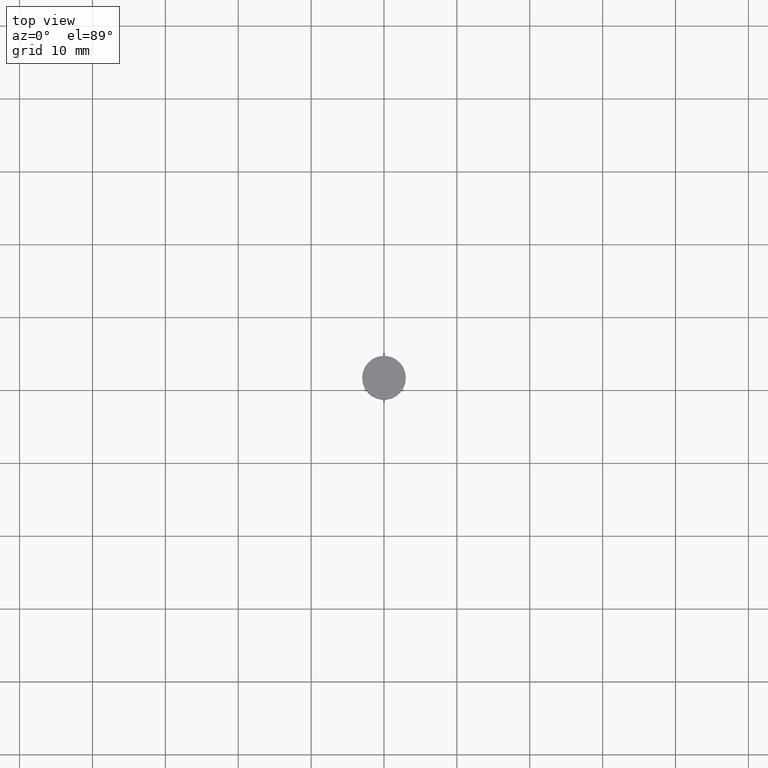
[diagram: clean part render]
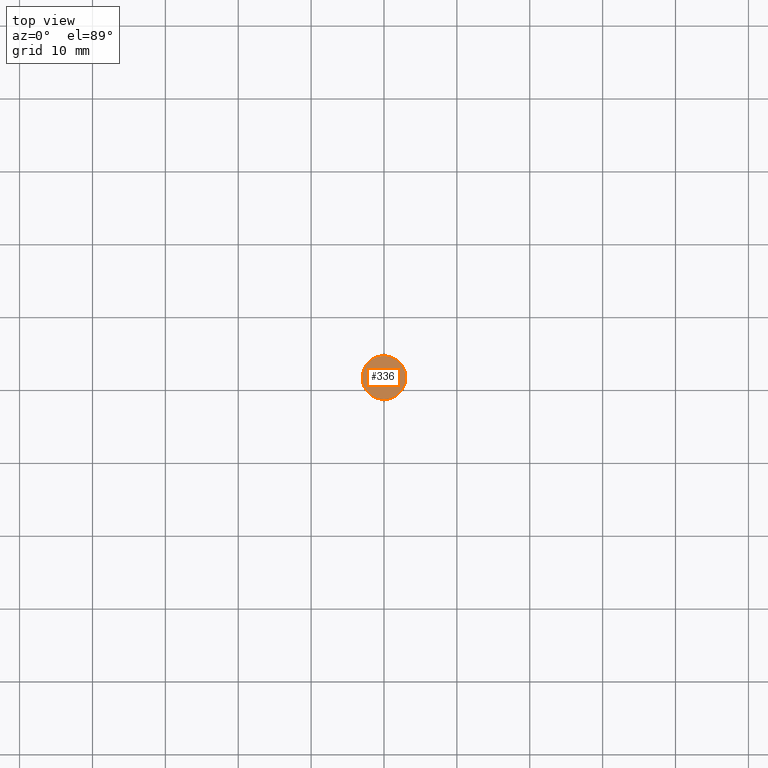
[diagram: same view with one face highlighted and labeled with its STEP entity id]
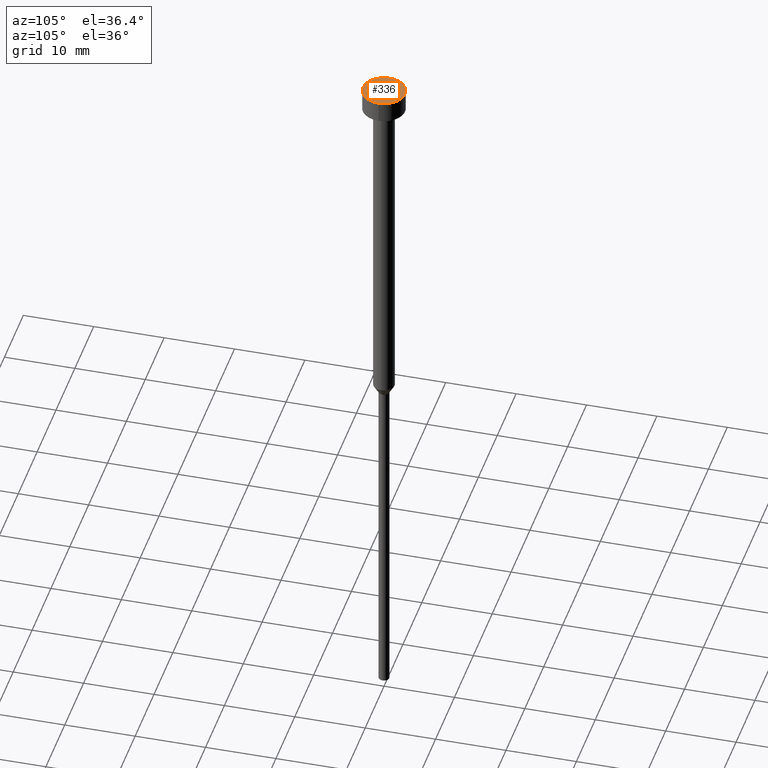
[diagram: same view with one face highlighted and labeled with its STEP entity id]
A machine part, top view. The second image highlights one B-rep face of the part: STEP entity #336.
A second angle (auxiliary view) of the same face is appended — the face is thin or edge-on in the first view.
In plain terms, the highlighted planar face has unit normal (0, -0, 1).
Its self-contained STEP definition (entity closure, byte-faithful):
#13 = CARTESIAN_POINT ( 'NONE',  ( 0.000000000000000000, 0.000000000000000000, -3.673940397442059868E-16 ) ) ;
#37 = DIRECTION ( 'NONE',  ( 1.000000000000000000, 0.000000000000000000, 0.000000000000000000 ) ) ;
#88 = ORIENTED_EDGE ( 'NONE', *, *, #157, .T. ) ;
#93 = PLANE ( 'NONE',  #290 ) ;
#107 = DIRECTION ( 'NONE',  ( -0.000000000000000000, -0.000000000000000000, 1.000000000000000000 ) ) ;
#119 = DIRECTION ( 'NONE',  ( 0.000000000000000000, -0.000000000000000000, 1.000000000000000000 ) ) ;
#122 = CARTESIAN_POINT ( 'NONE',  ( 3.000000000000000000, 0.000000000000000000, -3.673940397442059868E-16 ) ) ;
#157 = EDGE_CURVE ( 'NONE', #274, #304, #322, .T. ) ;
#158 = CIRCLE ( 'NONE', #281, 3.000000000000000000 ) ;
#177 = DIRECTION ( 'NONE',  ( 1.000000000000000000, 0.000000000000000000, 0.000000000000000000 ) ) ;
#200 = FACE_OUTER_BOUND ( 'NONE', #241, .T. ) ;
#223 = ORIENTED_EDGE ( 'NONE', *, *, #285, .T. ) ;
#224 = CARTESIAN_POINT ( 'NONE',  ( -3.000000000000000000, 3.673940397442059868E-16, -3.673940397442059868E-16 ) ) ;
#241 = EDGE_LOOP ( 'NONE', ( #88, #223 ) ) ;
#261 = AXIS2_PLACEMENT_3D ( 'NONE', #266, #107, #318 ) ;
#266 = CARTESIAN_POINT ( 'NONE',  ( 0.000000000000000000, 0.000000000000000000, -3.673940397442059868E-16 ) ) ;
#274 = VERTEX_POINT ( 'NONE', #122 ) ;
#281 = AXIS2_PLACEMENT_3D ( 'NONE', #13, #309, #37 ) ;
#285 = EDGE_CURVE ( 'NONE', #304, #274, #158, .T. ) ;
#290 = AXIS2_PLACEMENT_3D ( 'NONE', #306, #119, #177 ) ;
#304 = VERTEX_POINT ( 'NONE', #224 ) ;
#306 = CARTESIAN_POINT ( 'NONE',  ( 0.000000000000000000, 0.000000000000000000, -1.836970198721029934E-16 ) ) ;
#309 = DIRECTION ( 'NONE',  ( -0.000000000000000000, -0.000000000000000000, 1.000000000000000000 ) ) ;
#318 = DIRECTION ( 'NONE',  ( 1.000000000000000000, 0.000000000000000000, 0.000000000000000000 ) ) ;
#322 = CIRCLE ( 'NONE', #261, 3.000000000000000000 ) ;
#336 = ADVANCED_FACE ( 'NONE', ( #200 ), #93, .T. ) ;